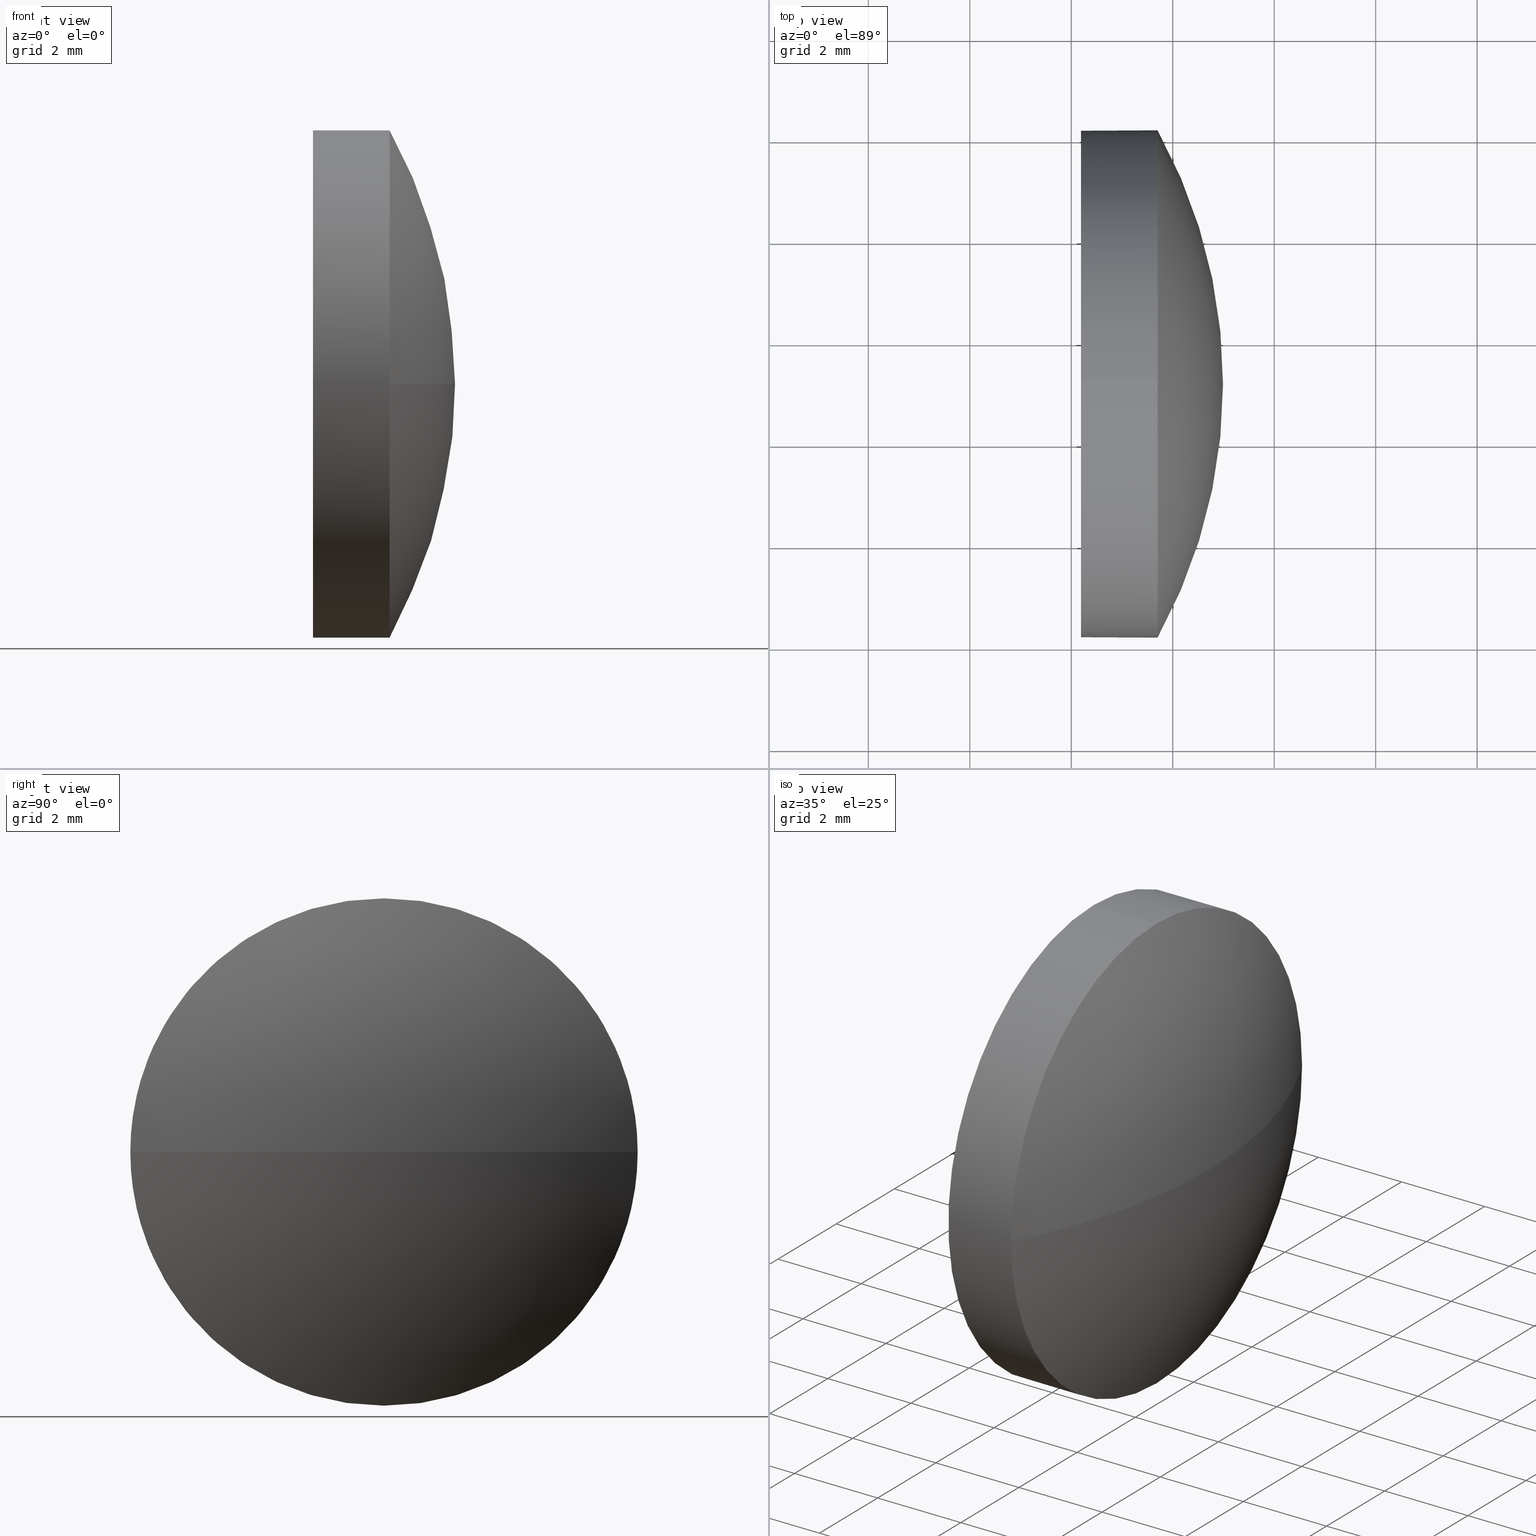
[diagram: canonical four-view strip — front | top / right | iso, engineering-drawing reading convention]
A machine part, canonical four-view strip (front | top / right | iso — engineering-drawing reading convention). The complete STEP part file that produces these views, byte-faithful:
ISO-10303-21;
HEADER;
FILE_DESCRIPTION (( 'STEP AP214' ),
    '1' );
FILE_NAME ('100188.STEP',
    '2019-05-21T06:05:35',
    ( '' ),
    ( '' ),
    'SwSTEP 2.0',
    'SolidWorks 2016',
    '' );
FILE_SCHEMA (( 'AUTOMOTIVE_DESIGN' ));
ENDSEC;

DATA;
#1 = AXIS2_PLACEMENT_3D ( 'NONE', #42, #45, #147 ) ;
#2 = DIRECTION ( 'NONE',  ( -1.000000000000000000, -0.0000000000000000000, -0.0000000000000000000 ) ) ;
#3 = DIRECTION ( 'NONE',  ( 0.0000000000000000000, 0.0000000000000000000, 1.000000000000000000 ) ) ;
#4 =( NAMED_UNIT ( * ) SI_UNIT ( $, .STERADIAN. ) SOLID_ANGLE_UNIT ( ) );
#5 = FACE_OUTER_BOUND ( 'NONE', #127, .T. ) ;
#6 = DIRECTION ( 'NONE',  ( 1.000000000000000000, 0.0000000000000000000, 0.0000000000000000000 ) ) ;
#7 = EDGE_CURVE ( 'NONE', #153, #108, #60, .T. ) ;
#8 = PLANE ( 'NONE',  #107 ) ;
#9 = ORIENTED_EDGE ( 'NONE', *, *, #114, .T. ) ;
#10 = EDGE_CURVE ( 'NONE', #20, #157, #158, .T. ) ;
#11 = ADVANCED_BREP_SHAPE_REPRESENTATION ( '100188', ( #18, #13 ), #152 ) ;
#12 = CYLINDRICAL_SURFACE ( 'NONE', #168, 5.000000000000004400 ) ;
#13 = AXIS2_PLACEMENT_3D ( 'NONE', #46, #121, #36 ) ;
#14 = PRESENTATION_STYLE_ASSIGNMENT (( #33 ) ) ;
#15 = SHAPE_DEFINITION_REPRESENTATION ( #70, #11 ) ;
#16 = ADVANCED_FACE ( 'NONE', ( #5 ), #156, .T. ) ;
#17 = EDGE_CURVE ( 'NONE', #153, #81, #172, .T. ) ;
#18 = MANIFOLD_SOLID_BREP ( '��ת1', #142 ) ;
#19 = FILL_AREA_STYLE ('',( #117 ) ) ;
#20 = VERTEX_POINT ( 'NONE', #104 ) ;
#21 =( NAMED_UNIT ( * ) SI_UNIT ( $, .STERADIAN. ) SOLID_ANGLE_UNIT ( ) );
#22 = ORIENTED_EDGE ( 'NONE', *, *, #7, .T. ) ;
#23 = LINE ( 'NONE', #50, #41 ) ;
#24 =( NAMED_UNIT ( * ) SI_UNIT ( $, .STERADIAN. ) SOLID_ANGLE_UNIT ( ) );
#25 = AXIS2_PLACEMENT_3D ( 'NONE', #186, #131, #44 ) ;
#26 = DIRECTION ( 'NONE',  ( 0.0000000000000000000, 0.0000000000000000000, -1.000000000000000000 ) ) ;
#27 = CARTESIAN_POINT ( 'NONE',  ( 484.6563062528024400, 43.15636075815857700, 0.0000000000000000000 ) ) ;
#28 =( LENGTH_UNIT ( ) NAMED_UNIT ( * ) SI_UNIT ( .MILLI., .METRE. ) );
#29 = EDGE_CURVE ( 'NONE', #133, #157, #88, .T. ) ;
#30 = ORIENTED_EDGE ( 'NONE', *, *, #10, .F. ) ;
#31 = AXIS2_PLACEMENT_3D ( 'NONE', #138, #169, #3 ) ;
#32 = ORIENTED_EDGE ( 'NONE', *, *, #143, .F. ) ;
#33 = SURFACE_STYLE_USAGE ( .BOTH. , #87 ) ;
#34 =( LENGTH_UNIT ( ) NAMED_UNIT ( * ) SI_UNIT ( .MILLI., .METRE. ) );
#35 = CARTESIAN_POINT ( 'NONE',  ( 491.3935564793571900, 43.15636075815854200, 0.0000000000000000000 ) ) ;
#36 = DIRECTION ( 'NONE',  ( 1.000000000000000000, 0.0000000000000000000, 0.0000000000000000000 ) ) ;
#37 = CARTESIAN_POINT ( 'NONE',  ( 494.9912287334225900, 43.15636075815857700, 0.0000000000000000000 ) ) ;
#38 = AXIS2_PLACEMENT_3D ( 'NONE', #68, #109, #77 ) ;
#39 = STYLED_ITEM ( 'NONE', ( #135 ), #11 ) ;
#40 = FACE_OUTER_BOUND ( 'NONE', #110, .T. ) ;
#41 = VECTOR ( 'NONE', #137, 1000.000000000000000 ) ;
#42 = CARTESIAN_POINT ( 'NONE',  ( 484.6563062528024400, 43.15636075815857700, 0.0000000000000000000 ) ) ;
#43 = CIRCLE ( 'NONE', #98, 5.000000000000004400 ) ;
#44 = DIRECTION ( 'NONE',  ( 0.0000000000000000000, 0.0000000000000000000, 1.000000000000000000 ) ) ;
#45 = DIRECTION ( 'NONE',  ( 0.0000000000000000000, 0.0000000000000000000, 1.000000000000000000 ) ) ;
#46 = CARTESIAN_POINT ( 'NONE',  ( 0.0000000000000000000, 0.0000000000000000000, 0.0000000000000000000 ) ) ;
#47 = ORIENTED_EDGE ( 'NONE', *, *, #54, .F. ) ;
#48 = PRODUCT_RELATED_PRODUCT_CATEGORY ( 'part', '', ( #141 ) ) ;
#49 = COLOUR_RGB ( '',1.000000000000000000, 1.000000000000000000, 1.000000000000000000 ) ;
#50 = CARTESIAN_POINT ( 'NONE',  ( 491.3935564793571900, 43.15636075815854200, -5.000000000000004400 ) ) ;
#51 = DIRECTION ( 'NONE',  ( -1.000000000000000000, -0.0000000000000000000, -0.0000000000000000000 ) ) ;
#52 = UNCERTAINTY_MEASURE_WITH_UNIT (LENGTH_MEASURE( 1.000000000000000100E-005 ), #28, 'distance_accuracy_value', 'NONE');
#53 = PRODUCT_DEFINITION_CONTEXT ( 'detailed design', #69, 'design' ) ;
#54 = EDGE_CURVE ( 'NONE', #157, #153, #165, .T. ) ;
#55 = APPLICATION_PROTOCOL_DEFINITION ( 'draft international standard', 'automotive_design', 1998, #69 ) ;
#56 = ORIENTED_EDGE ( 'NONE', *, *, #177, .T. ) ;
#57 = AXIS2_PLACEMENT_3D ( 'NONE', #89, #101, #174 ) ;
#58 = ORIENTED_EDGE ( 'NONE', *, *, #91, .F. ) ;
#59 = ADVANCED_FACE ( 'NONE', ( #126 ), #145, .T. ) ;
#60 = CIRCLE ( 'NONE', #57, 5.000000000000004400 ) ;
#61 = CARTESIAN_POINT ( 'NONE',  ( 484.6563062528024400, 43.15636075815857700, 0.0000000000000000000 ) ) ;
#62 = DIRECTION ( 'NONE',  ( -1.000000000000000000, -0.0000000000000000000, -0.0000000000000000000 ) ) ;
#63 = PRODUCT_CONTEXT ( 'NONE', #78, 'mechanical' ) ;
#64 = CARTESIAN_POINT ( 'NONE',  ( 493.7012287334225700, 43.15636075815854200, 0.0000000000000000000 ) ) ;
#65 = UNCERTAINTY_MEASURE_WITH_UNIT (LENGTH_MEASURE( 1.000000000000000100E-005 ), #106, 'distance_accuracy_value', 'NONE');
#66 = DIRECTION ( 'NONE',  ( 0.0000000000000000000, 0.0000000000000000000, 1.000000000000000000 ) ) ;
#67 = AXIS2_PLACEMENT_3D ( 'NONE', #64, #51, #96 ) ;
#68 = CARTESIAN_POINT ( 'NONE',  ( 492.1912287334225800, 43.15636075815854200, 0.0000000000000000000 ) ) ;
#69 = APPLICATION_CONTEXT ( 'automotive_design' ) ;
#70 = PRODUCT_DEFINITION_SHAPE ( 'NONE', 'NONE',  #82 ) ;
#71 = ADVANCED_FACE ( 'NONE', ( #83 ), #12, .T. ) ;
#72 = ORIENTED_EDGE ( 'NONE', *, *, #54, .T. ) ;
#73 = AXIS2_PLACEMENT_3D ( 'NONE', #27, #136, #139 ) ;
#74 =( NAMED_UNIT ( * ) PLANE_ANGLE_UNIT ( ) SI_UNIT ( $, .RADIAN. ) );
#75 = EDGE_LOOP ( 'NONE', ( #32, #163, #30, #119 ) ) ;
#76 = EDGE_CURVE ( 'NONE', #108, #20, #79, .T. ) ;
#77 = DIRECTION ( 'NONE',  ( 0.0000000000000000000, 0.0000000000000000000, 1.000000000000000000 ) ) ;
#78 = APPLICATION_CONTEXT ( 'automotive_design' ) ;
#79 = CIRCLE ( 'NONE', #67, 5.000000000000004400 ) ;
#80 = STYLED_ITEM ( 'NONE', ( #14 ), #18 ) ;
#81 = VERTEX_POINT ( 'NONE', #151 ) ;
#82 = PRODUCT_DEFINITION ( 'δ֪', '', #149, #53 ) ;
#83 = FACE_OUTER_BOUND ( 'NONE', #84, .T. ) ;
#84 = EDGE_LOOP ( 'NONE', ( #146, #9, #58, #185, #22 ) ) ;
#85 = AXIS2_PLACEMENT_3D ( 'NONE', #184, #62, #132 ) ;
#86 = CARTESIAN_POINT ( 'NONE',  ( 484.6563062528024400, 43.15636075815857700, 0.0000000000000000000 ) ) ;
#87 = SURFACE_SIDE_STYLE ('',( #112 ) ) ;
#88 = CIRCLE ( 'NONE', #100, 10.33492248062017900 ) ;
#89 = CARTESIAN_POINT ( 'NONE',  ( 493.7012287334225700, 43.15636075815854200, 0.0000000000000000000 ) ) ;
#90 = DIRECTION ( 'NONE',  ( 0.0000000000000000000, 0.0000000000000000000, 1.000000000000000000 ) ) ;
#91 = EDGE_CURVE ( 'NONE', #81, #160, #99, .T. ) ;
#92 = ORIENTED_EDGE ( 'NONE', *, *, #29, .F. ) ;
#93 =( NAMED_UNIT ( * ) PLANE_ANGLE_UNIT ( ) SI_UNIT ( $, .RADIAN. ) );
#94 = CARTESIAN_POINT ( 'NONE',  ( 492.1912287334225800, 43.15636075815854200, 0.0000000000000000000 ) ) ;
#95 =( GEOMETRIC_REPRESENTATION_CONTEXT ( 3 ) GLOBAL_UNCERTAINTY_ASSIGNED_CONTEXT ( ( #65 ) ) GLOBAL_UNIT_ASSIGNED_CONTEXT ( ( #106, #93, #24 ) ) REPRESENTATION_CONTEXT ( 'NONE', 'WORKASPACE' ) );
#96 = DIRECTION ( 'NONE',  ( 0.0000000000000000000, 0.0000000000000000000, 1.000000000000000000 ) ) ;
#97 = ORIENTED_EDGE ( 'NONE', *, *, #7, .F. ) ;
#98 = AXIS2_PLACEMENT_3D ( 'NONE', #180, #134, #66 ) ;
#99 = CIRCLE ( 'NONE', #38, 5.000000000000004400 ) ;
#100 = AXIS2_PLACEMENT_3D ( 'NONE', #61, #159, #115 ) ;
#101 = DIRECTION ( 'NONE',  ( -1.000000000000000000, -0.0000000000000000000, -0.0000000000000000000 ) ) ;
#102 = PRESENTATION_LAYER_ASSIGNMENT (  '', '', ( #80 ) ) ;
#103 = CYLINDRICAL_SURFACE ( 'NONE', #31, 5.000000000000004400 ) ;
#104 = CARTESIAN_POINT ( 'NONE',  ( 493.7012287334225700, 43.15636075815854200, -5.000000000000004400 ) ) ;
#105 = CARTESIAN_POINT ( 'NONE',  ( 493.7012287334225700, 48.15636075815855600, 6.123233995736746600E-016 ) ) ;
#106 =( LENGTH_UNIT ( ) NAMED_UNIT ( * ) SI_UNIT ( .MILLI., .METRE. ) );
#107 = AXIS2_PLACEMENT_3D ( 'NONE', #94, #6, #26 ) ;
#108 = VERTEX_POINT ( 'NONE', #105 ) ;
#109 = DIRECTION ( 'NONE',  ( -1.000000000000000000, -0.0000000000000000000, -0.0000000000000000000 ) ) ;
#110 = EDGE_LOOP ( 'NONE', ( #171, #111, #72, #113, #144 ) ) ;
#111 = ORIENTED_EDGE ( 'NONE', *, *, #10, .T. ) ;
#112 = SURFACE_STYLE_FILL_AREA ( #19 ) ;
#113 = ORIENTED_EDGE ( 'NONE', *, *, #17, .T. ) ;
#114 = EDGE_CURVE ( 'NONE', #20, #160, #23, .T. ) ;
#115 = DIRECTION ( 'NONE',  ( -1.000000000000000000, 0.0000000000000000000, 0.0000000000000000000 ) ) ;
#116 = ORIENTED_EDGE ( 'NONE', *, *, #91, .T. ) ;
#117 = FILL_AREA_STYLE_COLOUR ( '', #49 ) ;
#118 = CARTESIAN_POINT ( 'NONE',  ( 491.3935564793571900, 43.15636075815854200, 5.000000000000004400 ) ) ;
#119 = ORIENTED_EDGE ( 'NONE', *, *, #76, .F. ) ;
#120 = SURFACE_STYLE_USAGE ( .BOTH. , #176 ) ;
#121 = DIRECTION ( 'NONE',  ( 0.0000000000000000000, 0.0000000000000000000, 1.000000000000000000 ) ) ;
#122 = DIRECTION ( 'NONE',  ( 0.0000000000000000000, 0.0000000000000000000, 1.000000000000000000 ) ) ;
#123 = CARTESIAN_POINT ( 'NONE',  ( 493.7012287334225700, 43.15636075815854200, 5.000000000000004400 ) ) ;
#124 = ORIENTED_EDGE ( 'NONE', *, *, #143, .T. ) ;
#125 = PRESENTATION_LAYER_ASSIGNMENT (  '', '', ( #39 ) ) ;
#126 = FACE_OUTER_BOUND ( 'NONE', #75, .T. ) ;
#127 = EDGE_LOOP ( 'NONE', ( #92, #124, #97, #47 ) ) ;
#128 = ADVANCED_FACE ( 'NONE', ( #173 ), #8, .F. ) ;
#129 =( NAMED_UNIT ( * ) PLANE_ANGLE_UNIT ( ) SI_UNIT ( $, .RADIAN. ) );
#130 = AXIS2_PLACEMENT_3D ( 'NONE', #86, #90, #175 ) ;
#131 = DIRECTION ( 'NONE',  ( -1.000000000000000000, -0.0000000000000000000, -0.0000000000000000000 ) ) ;
#132 = DIRECTION ( 'NONE',  ( 0.0000000000000000000, 0.0000000000000000000, 1.000000000000000000 ) ) ;
#133 = VERTEX_POINT ( 'NONE', #37 ) ;
#134 = DIRECTION ( 'NONE',  ( -1.000000000000000000, -0.0000000000000000000, -0.0000000000000000000 ) ) ;
#135 = PRESENTATION_STYLE_ASSIGNMENT (( #120 ) ) ;
#136 = DIRECTION ( 'NONE',  ( 0.0000000000000000000, -1.224646799147353200E-016, 1.000000000000000000 ) ) ;
#137 = DIRECTION ( 'NONE',  ( -1.000000000000000000, -0.0000000000000000000, -0.0000000000000000000 ) ) ;
#138 = CARTESIAN_POINT ( 'NONE',  ( 491.3935564793571900, 43.15636075815854200, 0.0000000000000000000 ) ) ;
#139 = DIRECTION ( 'NONE',  ( 0.0000000000000000000, -1.000000000000000000, -1.224646799147353200E-016 ) ) ;
#140 = CIRCLE ( 'NONE', #73, 10.33492248062016500 ) ;
#141 = PRODUCT ( '100188', '100188', '', ( #63 ) ) ;
#142 = CLOSED_SHELL ( 'NONE', ( #71, #16, #59, #183, #128 ) ) ;
#143 = EDGE_CURVE ( 'NONE', #133, #108, #140, .T. ) ;
#144 = ORIENTED_EDGE ( 'NONE', *, *, #177, .F. ) ;
#145 = SPHERICAL_SURFACE ( 'NONE', #1, 10.33492248062016500 ) ;
#146 = ORIENTED_EDGE ( 'NONE', *, *, #76, .T. ) ;
#147 = DIRECTION ( 'NONE',  ( 0.0000000000000000000, -1.000000000000000000, 0.0000000000000000000 ) ) ;
#148 = APPLICATION_PROTOCOL_DEFINITION ( 'draft international standard', 'automotive_design', 1998, #78 ) ;
#149 = PRODUCT_DEFINITION_FORMATION_WITH_SPECIFIED_SOURCE ( '�κ�', '', #141, .NOT_KNOWN. ) ;
#150 = CARTESIAN_POINT ( 'NONE',  ( 492.1912287334225800, 43.15636075815854200, -5.000000000000004400 ) ) ;
#151 = CARTESIAN_POINT ( 'NONE',  ( 492.1912287334225800, 43.15636075815854200, 5.000000000000004400 ) ) ;
#152 =( GEOMETRIC_REPRESENTATION_CONTEXT ( 3 ) GLOBAL_UNCERTAINTY_ASSIGNED_CONTEXT ( ( #52 ) ) GLOBAL_UNIT_ASSIGNED_CONTEXT ( ( #28, #74, #4 ) ) REPRESENTATION_CONTEXT ( 'NONE', 'WORKASPACE' ) );
#153 = VERTEX_POINT ( 'NONE', #123 ) ;
#154 = MECHANICAL_DESIGN_GEOMETRIC_PRESENTATION_REPRESENTATION (  '', ( #80 ), #162 ) ;
#155 = COLOUR_RGB ( '',1.000000000000000000, 1.000000000000000000, 1.000000000000000000 ) ;
#156 = SPHERICAL_SURFACE ( 'NONE', #130, 10.33492248062016500 ) ;
#157 = VERTEX_POINT ( 'NONE', #170 ) ;
#158 = CIRCLE ( 'NONE', #85, 5.000000000000004400 ) ;
#159 = DIRECTION ( 'NONE',  ( 0.0000000000000000000, 0.0000000000000000000, -1.000000000000000000 ) ) ;
#160 = VERTEX_POINT ( 'NONE', #150 ) ;
#161 = VECTOR ( 'NONE', #2, 1000.000000000000000 ) ;
#162 =( GEOMETRIC_REPRESENTATION_CONTEXT ( 3 ) GLOBAL_UNCERTAINTY_ASSIGNED_CONTEXT ( ( #166 ) ) GLOBAL_UNIT_ASSIGNED_CONTEXT ( ( #34, #129, #21 ) ) REPRESENTATION_CONTEXT ( 'NONE', 'WORKASPACE' ) );
#163 = ORIENTED_EDGE ( 'NONE', *, *, #29, .T. ) ;
#164 = FILL_AREA_STYLE ('',( #179 ) ) ;
#165 = CIRCLE ( 'NONE', #25, 5.000000000000004400 ) ;
#166 = UNCERTAINTY_MEASURE_WITH_UNIT (LENGTH_MEASURE( 1.000000000000000100E-005 ), #34, 'distance_accuracy_value', 'NONE');
#167 = DIRECTION ( 'NONE',  ( -1.000000000000000000, -0.0000000000000000000, -0.0000000000000000000 ) ) ;
#168 = AXIS2_PLACEMENT_3D ( 'NONE', #35, #167, #122 ) ;
#169 = DIRECTION ( 'NONE',  ( -1.000000000000000000, -0.0000000000000000000, -0.0000000000000000000 ) ) ;
#170 = CARTESIAN_POINT ( 'NONE',  ( 493.7012287334225700, 38.15636075815854900, 0.0000000000000000000 ) ) ;
#171 = ORIENTED_EDGE ( 'NONE', *, *, #114, .F. ) ;
#172 = LINE ( 'NONE', #118, #161 ) ;
#173 = FACE_OUTER_BOUND ( 'NONE', #178, .T. ) ;
#174 = DIRECTION ( 'NONE',  ( 0.0000000000000000000, 0.0000000000000000000, 1.000000000000000000 ) ) ;
#175 = DIRECTION ( 'NONE',  ( 0.0000000000000000000, -1.000000000000000000, 0.0000000000000000000 ) ) ;
#176 = SURFACE_SIDE_STYLE ('',( #182 ) ) ;
#177 = EDGE_CURVE ( 'NONE', #160, #81, #43, .T. ) ;
#178 = EDGE_LOOP ( 'NONE', ( #116, #56 ) ) ;
#179 = FILL_AREA_STYLE_COLOUR ( '', #155 ) ;
#180 = CARTESIAN_POINT ( 'NONE',  ( 492.1912287334225800, 43.15636075815854200, 0.0000000000000000000 ) ) ;
#181 = MECHANICAL_DESIGN_GEOMETRIC_PRESENTATION_REPRESENTATION (  '', ( #39 ), #95 ) ;
#182 = SURFACE_STYLE_FILL_AREA ( #164 ) ;
#183 = ADVANCED_FACE ( 'NONE', ( #40 ), #103, .T. ) ;
#184 = CARTESIAN_POINT ( 'NONE',  ( 493.7012287334225700, 43.15636075815854200, 0.0000000000000000000 ) ) ;
#185 = ORIENTED_EDGE ( 'NONE', *, *, #17, .F. ) ;
#186 = CARTESIAN_POINT ( 'NONE',  ( 493.7012287334225700, 43.15636075815854200, 0.0000000000000000000 ) ) ;
ENDSEC;
END-ISO-10303-21;
